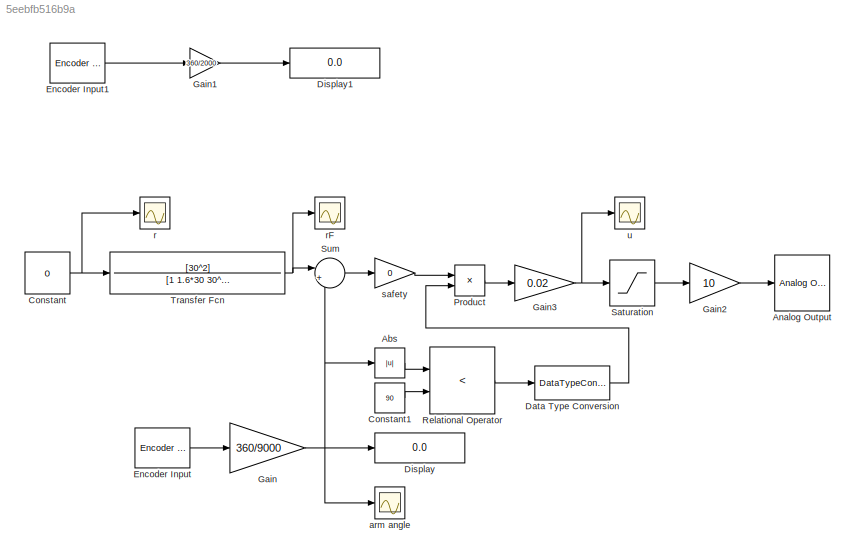
MODEL slx_5eebfb516b9a
KIND model
CONFIG AbsTol = auto
CONFIG EnableMultiTasking = off
CONFIG FixedStep = 0.001
CONFIG MaxStep = auto
CONFIG MinStep = auto
CONFIG RelTol = 1e-3
CONFIG SampleTimeConstraint = Unconstrained
CONFIG Solver = ode4
CONFIG SolverName = ode4
CONFIG StartTime = 0.0
CONFIG StopTime = inf
BLOCK [Abs] Abs
  SaturateOnIntegerOverflow = off
BLOCK [Reference] Analog Output  REF=sldrtlib/Analog Output
  AttributesFormatString = National Instruments\nPCIe-6321 [auto]
  Ports = [1]
  SourceBlock = sldrtlib/Analog Output
  SourceProductBaseCode = WT
  SourceType = Simulink Desktop Real-Time Analog Output
BLOCK [Constant] Constant
  Value = 0
BLOCK [Constant] Constant1
  Value = 90
BLOCK [DataTypeConversion] Data Type Conversion
  RndMeth = Floor
  SaturateOnIntegerOverflow = off
BLOCK [Display] Display
  Decimation = 1
  Ports = [1]
BLOCK [Display] Display1
  Decimation = 1
  Ports = [1]
BLOCK [Reference] Encoder Input  REF=sldrtlib/Encoder Input
  AttributesFormatString = National Instruments\nPCIe-6321 [auto]
  Ports = [0, 1]
  SourceBlock = sldrtlib/Encoder Input
  SourceProductBaseCode = WT
  SourceType = Simulink Desktop Real-Time Encoder Input
BLOCK [Reference] Encoder Input1  REF=sldrtlib/Encoder Input
  AttributesFormatString = National Instruments\nPCIe-6321 [auto]
  Ports = [0, 1]
  SourceBlock = sldrtlib/Encoder Input
  SourceProductBaseCode = WT
  SourceType = Simulink Desktop Real-Time Encoder Input
BLOCK [Gain] Gain
  Gain = 360/9000
BLOCK [Gain] Gain1
  Gain = 360/2000
BLOCK [Gain] Gain2
  Gain = 10
BLOCK [Gain] Gain3
  Gain = 0.02
BLOCK [Product] Product
  Ports = [2, 1]
BLOCK [RelationalOperator] Relational Operator
  InputSameDT = off
  Operator = <
  OutDataTypeStr = boolean
  Ports = [2, 1]
  RndMeth = Simplest
BLOCK [Saturate] Saturation
  LowerLimit = -1
  UpperLimit = 1
BLOCK [Sum] Sum
  Inputs = |+-
  NameLocation = top
  Ports = [2, 1]
BLOCK [TransferFcn] Transfer Fcn
  Denominator = [1 1.6*30 30^2]
  Numerator = [30^2]
BLOCK [Scope] arm angle
  Floating = off
  NumInputPorts = 1
  Ports = [1]
  ScopeSpecificationString = Simulink.scopes.TimeScopeBlockCfg('CurrentConfiguration', extmgr.ConfigurationSet(extmgr.Configuration('Core','General UI',true),extmgr.Configuration('Core','Source UI',true),extmgr.Configuration('Sources','WiredSimulink',true,'DataLoggingVariableName','theta','DataLogging',true,'DataLoggingSaveFormat','StructureWithTime'),extmgr.Configuration('Visuals','Time Domain',true,'SerializedDisplays',{str...<+1527ch>
BLOCK [Scope] r
  Floating = off
  NumInputPorts = 1
  Ports = [1]
  ScopeSpecificationString = Simulink.scopes.TimeScopeBlockCfg('CurrentConfiguration', extmgr.ConfigurationSet(extmgr.Configuration('Core','General UI',true),extmgr.Configuration('Core','Source UI',true),extmgr.Configuration('Sources','WiredSimulink',true,'DataLoggingVariableName','r','DataLogging',true,'DataLoggingSaveFormat','StructureWithTime'),extmgr.Configuration('Visuals','Time Domain',true,'SerializedDisplays',{struct(...<+1543ch>
BLOCK [Scope] rF
  Floating = off
  NumInputPorts = 1
  Ports = [1]
  ScopeSpecificationString = Simulink.scopes.TimeScopeBlockCfg('CurrentConfiguration', extmgr.ConfigurationSet(extmgr.Configuration('Core','General UI',true),extmgr.Configuration('Core','Source UI',true),extmgr.Configuration('Sources','WiredSimulink',true,'DataLoggingVariableName','rF','DataLogging',true,'DataLoggingSaveFormat','StructureWithTime'),extmgr.Configuration('Visuals','Time Domain',true,'SerializedDisplays',{struct...<+1526ch>
BLOCK [Gain] safety
  Gain = 0
BLOCK [Scope] u
  Floating = off
  NameLocation = right
  NumInputPorts = 1
  Ports = [1]
  ScopeSpecificationString = Simulink.scopes.TimeScopeBlockCfg('CurrentConfiguration', extmgr.ConfigurationSet(extmgr.Configuration('Core','General UI',true),extmgr.Configuration('Core','Source UI',true),extmgr.Configuration('Sources','WiredSimulink',true,'DataLogging',true,'DataLoggingVariableName','u','DataLoggingSaveFormat','StructureWithTime'),extmgr.Configuration('Visuals','Time Domain',true,'SerializedDisplays',{struct(...<+1568ch>
LINE Abs:1 -> Relational Operator:1
LINE Constant1:1 -> Relational Operator:2
NET Constant:1 -> Transfer Fcn:1, r:1
LINE Data Type Conversion:1 -> Product:2
LINE Encoder Input1:1 -> Gain1:1
LINE Encoder Input:1 -> Gain:1
LINE Gain1:1 -> Display1:1
LINE Gain2:1 -> Analog Output:1
NET Gain3:1 -> Saturation:1, u:1
NET Gain:1 -> Abs:1, Display:1, Sum:2, arm angle:1
LINE Product:1 -> Gain3:1
LINE Relational Operator:1 -> Data Type Conversion:1
LINE Saturation:1 -> Gain2:1
LINE Sum:1 -> safety:1
NET Transfer Fcn:1 -> Sum:1, rF:1
LINE safety:1 -> Product:1
note: NET lines group one-source signal fan-out (src -> all destinations, sorted); 1:1 wires keep LINE
